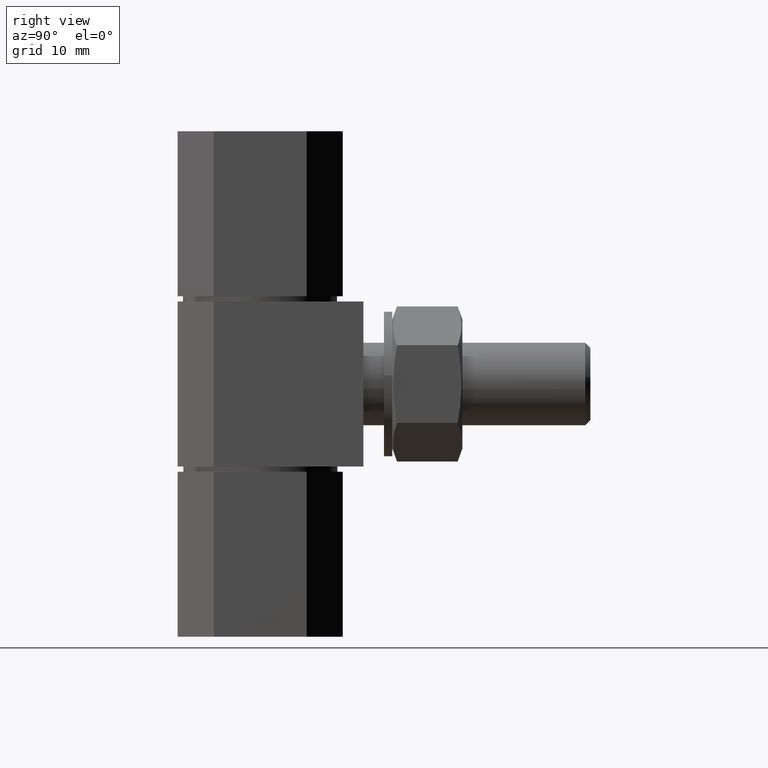
[diagram: clean part render]
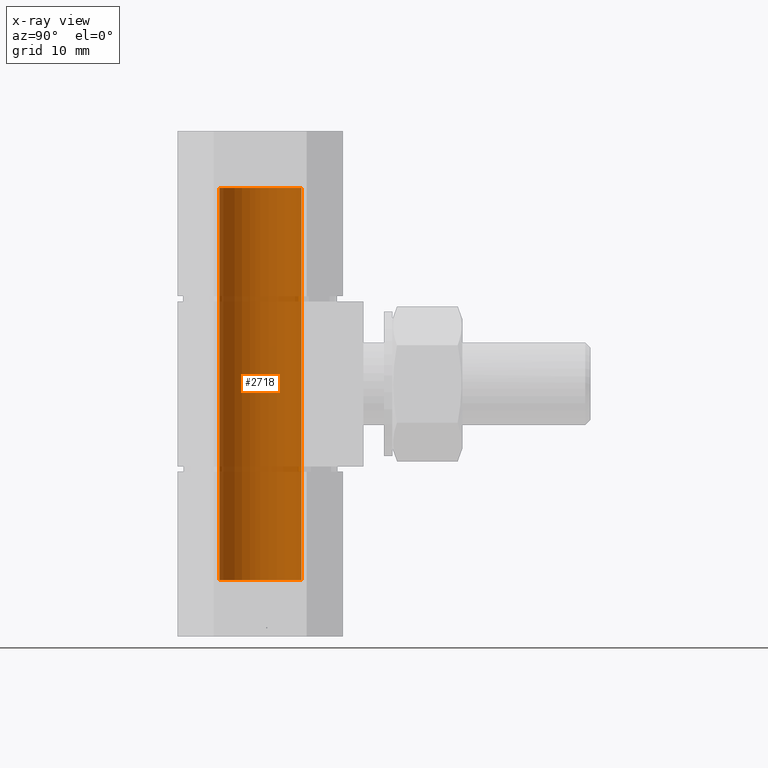
[diagram: x-ray — body ghosted, one internal face saturated and labeled with its STEP entity id]
A machine part, right view, then the same camera in x-ray: the body is ghosted and one INTERNAL B-rep face — a face not visible from any outside direction — is saturated and labeled: STEP entity #2718.
In plain terms, the highlighted face is a freeform B-spline surface patch.
Its self-contained STEP definition (entity closure, byte-faithful):
#2616=CARTESIAN_POINT('',(0.472136938627034,-3.972038105454666,44.450001163687467));
#2617=CARTESIAN_POINT('',(0.358458914551911,-3.985550461794422,44.450001163687460));
#2618=CARTESIAN_POINT('',(0.244194158139428,-3.992539193687467,44.450001163687453));
#2619=CARTESIAN_POINT('',(-3.748345035548039,-4.236733351826894,44.450001163687453));
#2620=CARTESIAN_POINT('',(-3.992539193687467,-0.244194158139428,44.450001163687453));
#2621=CARTESIAN_POINT('',(-4.236733351826894,3.748345035548039,44.450001163687453));
#2622=CARTESIAN_POINT('',(-0.244194158139428,3.992539193687467,44.450001163687453));
#2623=CARTESIAN_POINT('',(0.472136938627034,-3.972038105454666,4.526251163687533));
#2624=CARTESIAN_POINT('',(0.358458914551911,-3.985550461794422,4.526251163687534));
#2625=CARTESIAN_POINT('',(0.244194158139428,-3.992539193687467,4.526251163687533));
#2626=CARTESIAN_POINT('',(-3.748345035548039,-4.236733351826894,4.526251163687534));
#2627=CARTESIAN_POINT('',(-3.992539193687467,-0.244194158139428,4.526251163687533));
#2628=CARTESIAN_POINT('',(-4.236733351826894,3.748345035548039,4.526251163687534));
#2629=CARTESIAN_POINT('',(-0.244194158139428,3.992539193687467,4.526251163687533));
#2637=(BOUNDED_SURFACE()B_SPLINE_SURFACE(2,1,((#2616,#2623),(#2617,#2624),(#2618,#2625),(#2619,#2626),(#2620,#2627),(#2621,#2628),(#2622,#2629)),.UNSPECIFIED.,.F.,.F.,.U.)B_SPLINE_SURFACE_WITH_KNOTS((3,2,2,3),(2,2),(0.0,0.265096679918781,6.892513677888299,13.519930675857820),(0.0,39.923749999999927),.UNSPECIFIED.)GEOMETRIC_REPRESENTATION_ITEM()RATIONAL_B_SPLINE_SURFACE(((0.977505800795127,0.977505800795127),(0.988284271247462,0.988284271247462),(1.0,1.0),(0.707106781186548,0.707106781186548),(1.0,1.0),(0.707106781186548,0.707106781186548),(1.0,1.0)))REPRESENTATION_ITEM('')SURFACE());
#2638=CARTESIAN_POINT('',(0.472136938666466,-3.972038105449978,5.500001163687541));
#2639=VERTEX_POINT('',#2638);
#2640=CARTESIAN_POINT('',(-4.0,0.0,5.500001163687540));
#2641=VERTEX_POINT('',#2640);
#2642=CARTESIAN_POINT('',(0.472136938666466,-3.972038105449979,5.500001163687541));
#2643=CARTESIAN_POINT('',(0.236896478647489,-4.0,5.500001163687540));
#2644=CARTESIAN_POINT('',(0.0,-4.0,5.500001163687540));
#2645=CARTESIAN_POINT('',(-4.000000000000000,-4.000000000000000,5.500001163687539));
#2646=CARTESIAN_POINT('',(-4.0,0.0,5.500001163687540));
#2654=(BOUNDED_CURVE()B_SPLINE_CURVE(2,(#2642,#2643,#2644,#2645,#2646),.UNSPECIFIED.,.F.,.U.)B_SPLINE_CURVE_WITH_KNOTS((3,2,3),(0.229562473512289,0.250000000000000,0.500000000000000),.UNSPECIFIED.)CURVE()GEOMETRIC_REPRESENTATION_ITEM()RATIONAL_B_SPLINE_CURVE((0.956026754181309,0.976055948329716,1.0,0.707106781186548,1.0))REPRESENTATION_ITEM(''));
#2655=EDGE_CURVE('',#2639,#2641,#2654,.T.);
#2656=ORIENTED_EDGE('',*,*,#2655,.F.);
#2657=CARTESIAN_POINT('',(0.472136938666465,-3.972038105449978,43.500001163687443));
#2658=VERTEX_POINT('',#2657);
#2659=CARTESIAN_POINT('',(0.472136938666465,-3.972038105449978,43.500001163687443));
#2660=CARTESIAN_POINT('',(0.472136938666466,-3.972038105449978,5.500001163687541));
#2661=QUASI_UNIFORM_CURVE('',1,(#2659,#2660),.UNSPECIFIED.,.F.,.U.);
#2662=EDGE_CURVE('',#2658,#2639,#2661,.T.);
#2663=ORIENTED_EDGE('',*,*,#2662,.F.);
#2664=CARTESIAN_POINT('',(-4.0,0.0,43.500001163687450));
#2665=VERTEX_POINT('',#2664);
#2666=CARTESIAN_POINT('',(0.472136938666465,-3.972038105449978,43.500001163687436));
#2667=CARTESIAN_POINT('',(0.236896478647489,-4.0,43.500001163687443));
#2668=CARTESIAN_POINT('',(0.0,-4.0,43.500001163687450));
#2669=CARTESIAN_POINT('',(-4.000000000000000,-4.000000000000000,43.500001163687458));
#2670=CARTESIAN_POINT('',(-4.0,0.0,43.500001163687450));
#2678=(BOUNDED_CURVE()B_SPLINE_CURVE(2,(#2666,#2667,#2668,#2669,#2670),.UNSPECIFIED.,.F.,.U.)B_SPLINE_CURVE_WITH_KNOTS((3,2,3),(0.229562473512289,0.250000000000000,0.500000000000000),.UNSPECIFIED.)CURVE()GEOMETRIC_REPRESENTATION_ITEM()RATIONAL_B_SPLINE_CURVE((0.956026754181309,0.976055948329716,1.0,0.707106781186548,1.0))REPRESENTATION_ITEM(''));
#2679=EDGE_CURVE('',#2658,#2665,#2678,.T.);
#2680=ORIENTED_EDGE('',*,*,#2679,.T.);
#2681=CARTESIAN_POINT('',(-0.244192120859175,3.992539318291822,43.500001163687458));
#2682=VERTEX_POINT('',#2681);
#2683=CARTESIAN_POINT('',(-4.0,0.0,43.500001163687450));
#2684=CARTESIAN_POINT('',(-4.000000000000001,3.762826191274377,43.500001163687443));
#2685=CARTESIAN_POINT('',(-0.244192120859176,3.992539318291823,43.500001163687458));
#2693=(BOUNDED_CURVE()B_SPLINE_CURVE(2,(#2683,#2684,#2685),.UNSPECIFIED.,.F.,.U.)B_SPLINE_CURVE_WITH_KNOTS((3,3),(0.500000000000000,0.739333050287739),.UNSPECIFIED.)CURVE()GEOMETRIC_REPRESENTATION_ITEM()RATIONAL_B_SPLINE_CURVE((1.0,0.719603890131129,0.976072230372121))REPRESENTATION_ITEM(''));
#2694=EDGE_CURVE('',#2665,#2682,#2693,.T.);
#2695=ORIENTED_EDGE('',*,*,#2694,.T.);
#2696=CARTESIAN_POINT('',(-0.244192095463446,3.992539319845065,5.500001163687543));
#2697=VERTEX_POINT('',#2696);
#2698=CARTESIAN_POINT('',(-0.244192120859175,3.992539318291822,43.500001163687458));
#2699=CARTESIAN_POINT('',(-0.244192095463446,3.992539319845065,5.500001163687543));
#2700=QUASI_UNIFORM_CURVE('',1,(#2698,#2699),.UNSPECIFIED.,.F.,.U.);
#2701=EDGE_CURVE('',#2682,#2697,#2700,.T.);
#2702=ORIENTED_EDGE('',*,*,#2701,.T.);
#2703=CARTESIAN_POINT('',(-4.0,0.0,5.500001163687540));
#2704=CARTESIAN_POINT('',(-4.0,3.762826215253673,5.500001163687540));
#2705=CARTESIAN_POINT('',(-0.244192095463446,3.992539319845065,5.500001163687543));
#2713=(BOUNDED_CURVE()B_SPLINE_CURVE(2,(#2703,#2704,#2705),.UNSPECIFIED.,.F.,.U.)B_SPLINE_CURVE_WITH_KNOTS((3,3),(0.500000000000000,0.739333051385274),.UNSPECIFIED.)CURVE()GEOMETRIC_REPRESENTATION_ITEM()RATIONAL_B_SPLINE_CURVE((1.0,0.719603888845286,0.976072232724350))REPRESENTATION_ITEM(''));
#2714=EDGE_CURVE('',#2641,#2697,#2713,.T.);
#2715=ORIENTED_EDGE('',*,*,#2714,.F.);
#2716=EDGE_LOOP('',(#2656,#2663,#2680,#2695,#2702,#2715));
#2717=FACE_OUTER_BOUND('',#2716,.T.);
#2718=ADVANCED_FACE('',(#2717),#2637,.T.);